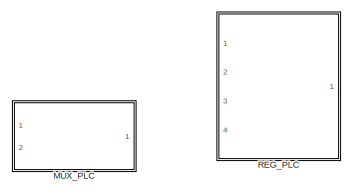
[diagram: root canvas - part 1/3, top left region]
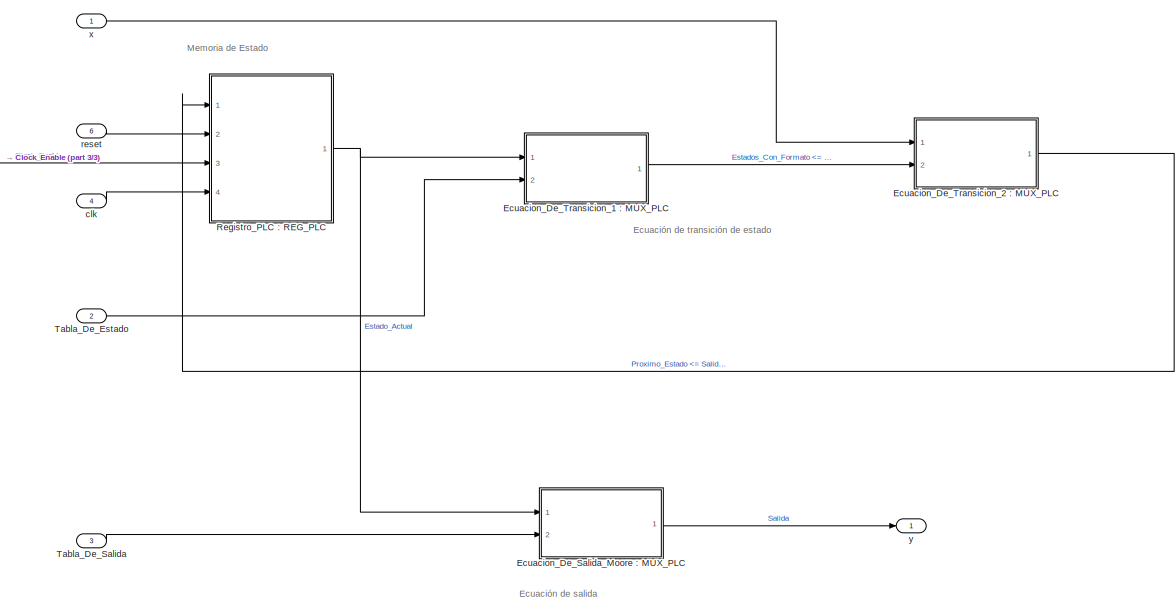
[diagram: root canvas - part 2/3, bottom right region]
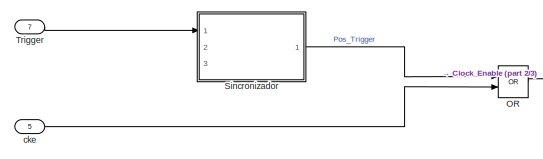
[diagram: root canvas - part 3/3, middle left region]
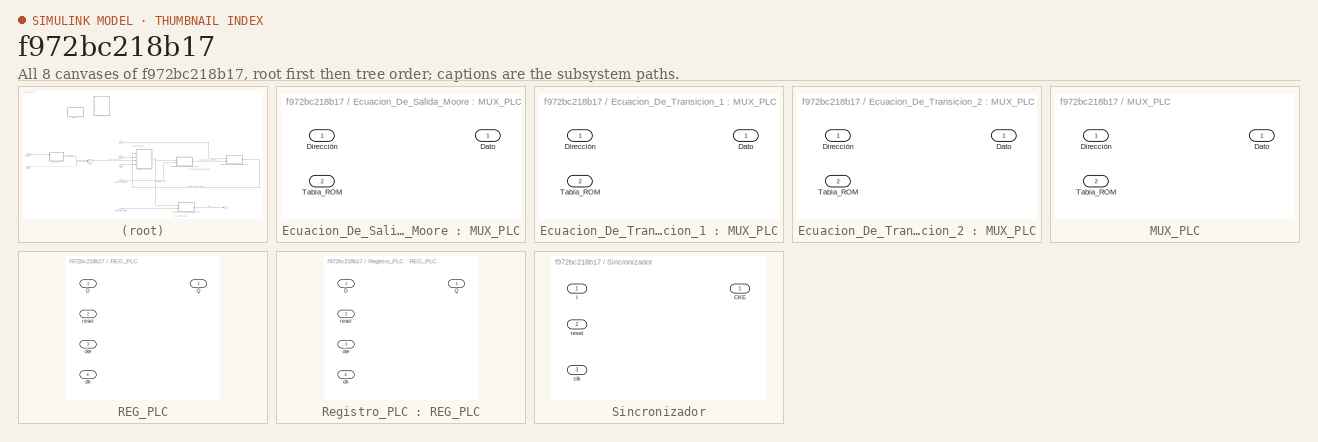
[diagram: thumbnail index - all 8 canvases of the model, root first then tree order]
MODEL slx_f972bc218b17
KIND model
CONFIG AbsTol = auto
CONFIG EnableMultiTasking = off
CONFIG FixedStep = auto
CONFIG MaxStep = auto
CONFIG MinStep = auto
CONFIG RelTol = 1e-3
CONFIG SampleTimeConstraint = Unconstrained
CONFIG SolverName = VariableStepAuto
CONFIG StartTime = 0.0
CONFIG StopTime = 10.0
BLOCK [SubSystem] Ecuacion_De_Salida_Moore : MUX_PLC
  Ports = [2, 1]
  RequestExecContextInheritance = off
BLOCK [Outport] Ecuacion_De_Salida_Moore : MUX_PLC/Dato
BLOCK [Inport] Ecuacion_De_Salida_Moore : MUX_PLC/Dirección
BLOCK [Inport] Ecuacion_De_Salida_Moore : MUX_PLC/Tabla_ROM
  Port = 2
BLOCK [SubSystem] Ecuacion_De_Transicion_1 : MUX_PLC
  Ports = [2, 1]
  RequestExecContextInheritance = off
BLOCK [Outport] Ecuacion_De_Transicion_1 : MUX_PLC/Dato
BLOCK [Inport] Ecuacion_De_Transicion_1 : MUX_PLC/Dirección
BLOCK [Inport] Ecuacion_De_Transicion_1 : MUX_PLC/Tabla_ROM
  Port = 2
BLOCK [SubSystem] Ecuacion_De_Transicion_2 : MUX_PLC
  Ports = [2, 1]
  RequestExecContextInheritance = off
BLOCK [Outport] Ecuacion_De_Transicion_2 : MUX_PLC/Dato
BLOCK [Inport] Ecuacion_De_Transicion_2 : MUX_PLC/Dirección
BLOCK [Inport] Ecuacion_De_Transicion_2 : MUX_PLC/Tabla_ROM
  Port = 2
BLOCK [SubSystem] MUX_PLC
  Ports = [2, 1]
  RequestExecContextInheritance = off
BLOCK [Outport] MUX_PLC/Dato
BLOCK [Inport] MUX_PLC/Dirección
BLOCK [Inport] MUX_PLC/Tabla_ROM
  Port = 2
BLOCK [Logic] OR
  AllPortsSameDT = off
  IconShape = distinctive
  Operator = OR
  OutDataTypeStr = boolean
  Ports = [2, 1]
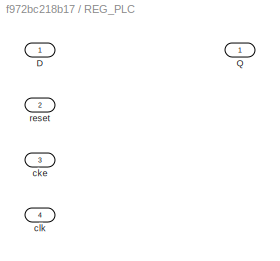
BLOCK [SubSystem] REG_PLC
  Ports = [4, 1]
  RequestExecContextInheritance = off
BLOCK [Inport] REG_PLC/D
BLOCK [Outport] REG_PLC/Q
BLOCK [Inport] REG_PLC/cke
  Port = 3
BLOCK [Inport] REG_PLC/clk
  Port = 4
BLOCK [Inport] REG_PLC/reset
  Port = 2
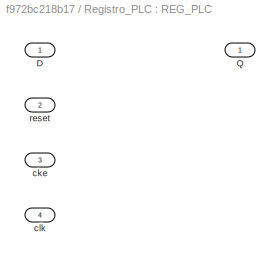
BLOCK [SubSystem] Registro_PLC : REG_PLC
  Ports = [4, 1]
  RequestExecContextInheritance = off
BLOCK [Inport] Registro_PLC : REG_PLC/D
BLOCK [Outport] Registro_PLC : REG_PLC/Q
BLOCK [Inport] Registro_PLC : REG_PLC/cke
  Port = 3
BLOCK [Inport] Registro_PLC : REG_PLC/clk
  Port = 4
BLOCK [Inport] Registro_PLC : REG_PLC/reset
  Port = 2
BLOCK [SubSystem] Sincronizador
  Ports = [3, 1]
  RequestExecContextInheritance = off
BLOCK [Outport] Sincronizador/CKE
BLOCK [Inport] Sincronizador/I
BLOCK [Inport] Sincronizador/clk
  Port = 3
BLOCK [Inport] Sincronizador/reset
  Port = 2
BLOCK [Inport] Tabla_De_Estado
  Port = 2
BLOCK [Inport] Tabla_De_Salida
  Port = 3
BLOCK [Inport] Trigger
  Port = 7
BLOCK [Inport] cke
  Port = 5
BLOCK [Inport] clk
  Port = 4
BLOCK [Inport] reset
  Port = 6
BLOCK [Inport] x
BLOCK [Outport] y
ANNOTATION (root): Ecuación de salida
ANNOTATION (root): Ecuación de transición de estado
ANNOTATION (root): Memoria de Estado
LINE Ecuacion_De_Salida_Moore : MUX_PLC:1 -> y:1
LINE Ecuacion_De_Transicion_1 : MUX_PLC:1 -> Ecuacion_De_Transicion_2 : MUX_PLC:2
LINE Ecuacion_De_Transicion_2 : MUX_PLC:1 -> Registro_PLC : REG_PLC:1
LINE OR:1 -> Registro_PLC : REG_PLC:3
NET Registro_PLC : REG_PLC:1 -> Ecuacion_De_Salida_Moore : MUX_PLC:1, Ecuacion_De_Transicion_1 : MUX_PLC:1
LINE Sincronizador:1 -> OR:1
LINE Tabla_De_Estado:1 -> Ecuacion_De_Transicion_1 : MUX_PLC:2
LINE Tabla_De_Salida:1 -> Ecuacion_De_Salida_Moore : MUX_PLC:2
LINE Trigger:1 -> Sincronizador:1
LINE cke:1 -> OR:2
LINE clk:1 -> Registro_PLC : REG_PLC:4
LINE reset:1 -> Registro_PLC : REG_PLC:2
LINE x:1 -> Ecuacion_De_Transicion_2 : MUX_PLC:1
note: NET lines group one-source signal fan-out (src -> all destinations, sorted); 1:1 wires keep LINE
